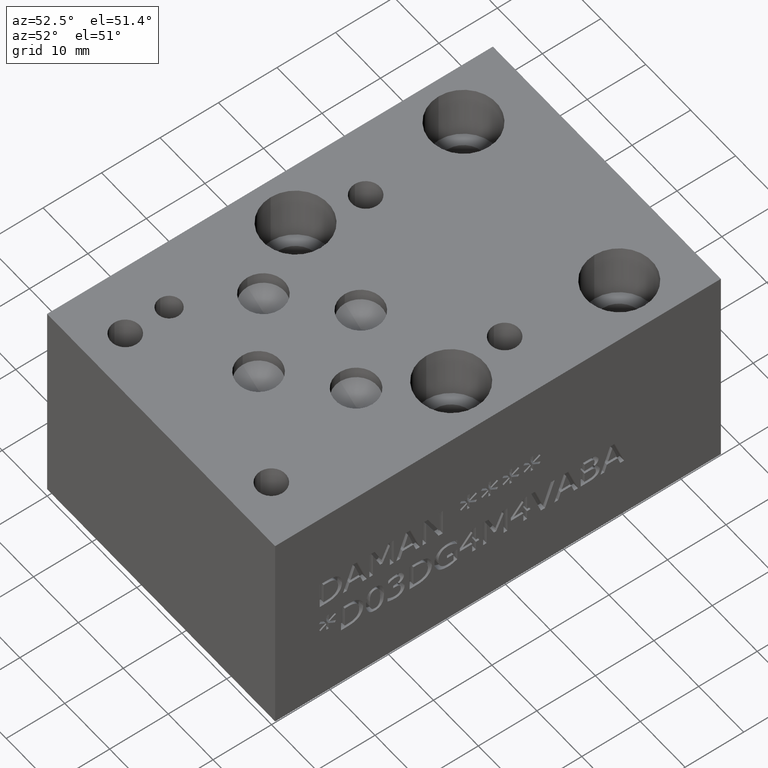
[diagram: clean part render]
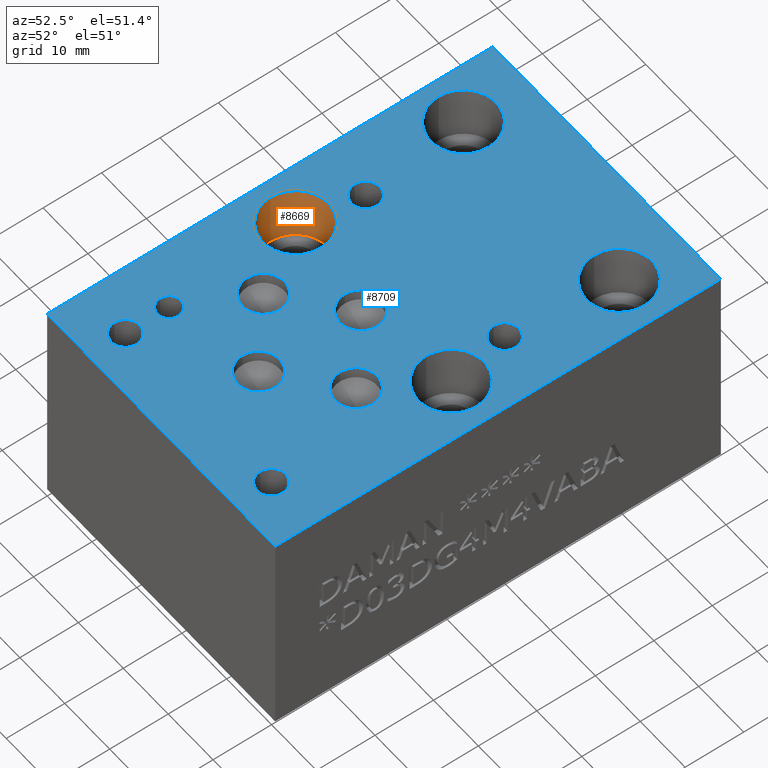
[diagram: same view with the hole feature highlighted: cylindrical wall and planar end face, labeled with their STEP entity ids]
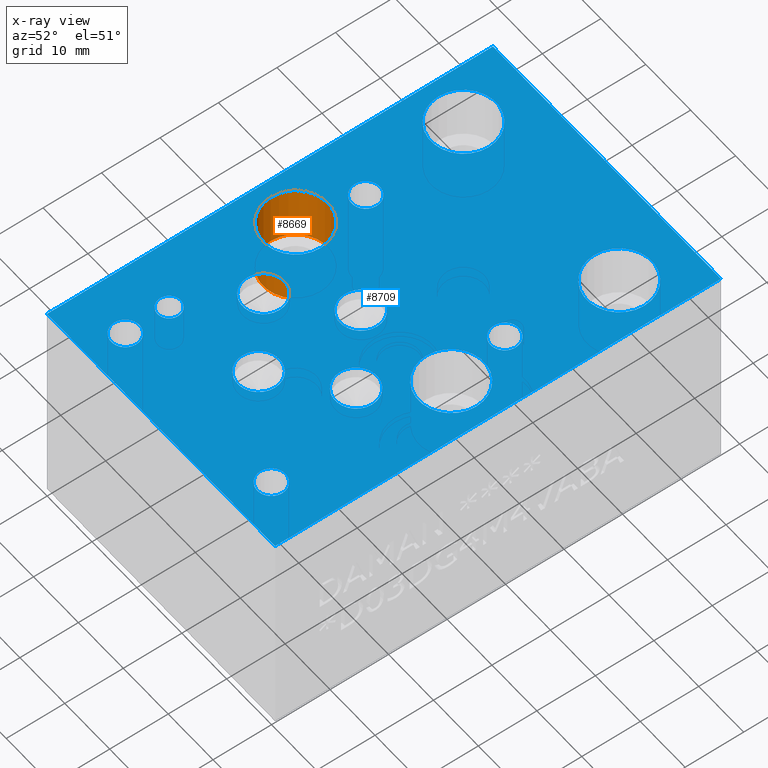
[diagram: x-ray of the same camera — body ghosted, the hole faces saturated]
A machine part, auxiliary view. The highlighted faces form one hole feature of diameter 11.1252 mm: the cylindrical wall (entity #8669, orange) and its adjacent planar end face (entity #8709, blue) — they share a circular edge in the B-rep.
The next image is the same camera in x-ray (body ghosted, the hole faces saturated) — the bore reads through the body.
Wall:
#93=CIRCLE('',#9096,5.5626);
#94=CIRCLE('',#9097,5.5626);
#96=CIRCLE('',#9100,5.5626);
#97=CIRCLE('',#9101,5.5626);
#175=CYLINDRICAL_SURFACE('',#9099,5.5626);
#908=FACE_OUTER_BOUND('',#1387,.T.);
#1387=EDGE_LOOP('',(#7382,#7383,#7384,#7385,#7386,#7387));
#2314=LINE('',#14364,#3209);
#3209=VECTOR('',#10818,5.5626);
#3981=VERTEX_POINT('',#14353);
#3982=VERTEX_POINT('',#14354);
#3984=VERTEX_POINT('',#14360);
#3985=VERTEX_POINT('',#14361);
#5143=EDGE_CURVE('',#3981,#3982,#93,.T.);
#5144=EDGE_CURVE('',#3982,#3981,#94,.T.);
#5146=EDGE_CURVE('',#3984,#3985,#96,.T.);
#5147=EDGE_CURVE('',#3985,#3984,#97,.T.);
#5148=EDGE_CURVE('',#3985,#3982,#2314,.T.);
#7382=ORIENTED_EDGE('',*,*,#5146,.F.);
#7383=ORIENTED_EDGE('',*,*,#5147,.F.);
#7384=ORIENTED_EDGE('',*,*,#5148,.T.);
#7385=ORIENTED_EDGE('',*,*,#5143,.F.);
#7386=ORIENTED_EDGE('',*,*,#5144,.F.);
#7387=ORIENTED_EDGE('',*,*,#5148,.F.);
#8669=ADVANCED_FACE('',(#908),#175,.F.);
#9096=AXIS2_PLACEMENT_3D('',#14355,#10806,#10807);
#9097=AXIS2_PLACEMENT_3D('',#14356,#10808,#10809);
#9099=AXIS2_PLACEMENT_3D('',#14359,#10812,#10813);
#9100=AXIS2_PLACEMENT_3D('',#14362,#10814,#10815);
#9101=AXIS2_PLACEMENT_3D('',#14363,#10816,#10817);
#10806=DIRECTION('center_axis',(0.,0.,1.));
#10807=DIRECTION('ref_axis',(1.,0.,0.));
#10808=DIRECTION('center_axis',(0.,0.,1.));
#10809=DIRECTION('ref_axis',(1.,0.,0.));
#10812=DIRECTION('center_axis',(0.,0.,1.));
#10813=DIRECTION('ref_axis',(1.,0.,0.));
#10814=DIRECTION('center_axis',(0.,0.,-1.));
#10815=DIRECTION('ref_axis',(1.,0.,0.));
#10816=DIRECTION('center_axis',(0.,0.,-1.));
#10817=DIRECTION('ref_axis',(1.,0.,0.));
#10818=DIRECTION('',(0.,0.,-1.));
#14353=CARTESIAN_POINT('',(13.5128,36.3728,28.575));
#14354=CARTESIAN_POINT('',(2.3876,36.3728,28.575));
#14355=CARTESIAN_POINT('Origin',(7.9502,36.3728,28.575));
#14356=CARTESIAN_POINT('Origin',(7.9502,36.3728,28.575));
#14359=CARTESIAN_POINT('Origin',(7.9502,36.3728,33.3375));
#14360=CARTESIAN_POINT('',(13.5128,36.3728,38.1));
#14361=CARTESIAN_POINT('',(2.3876,36.3728,38.1));
#14362=CARTESIAN_POINT('Origin',(7.9502,36.3728,38.1));
#14363=CARTESIAN_POINT('Origin',(7.9502,36.3728,38.1));
#14364=CARTESIAN_POINT('',(2.3876,36.3728,33.3375));
End face:
#89=CIRCLE('',#9089,5.5626);
#90=CIRCLE('',#9090,5.5626);
#96=CIRCLE('',#9100,5.5626);
#97=CIRCLE('',#9101,5.5626);
#103=CIRCLE('',#9111,5.5626);
#104=CIRCLE('',#9112,5.5626);
#110=CIRCLE('',#9122,5.5626);
#111=CIRCLE('',#9123,5.5626);
#114=CIRCLE('',#9129,3.5687);
#115=CIRCLE('',#9130,3.5687);
#118=CIRCLE('',#9135,3.5687);
#119=CIRCLE('',#9136,3.5687);
#122=CIRCLE('',#9141,3.5687);
#123=CIRCLE('',#9142,3.5687);
#126=CIRCLE('',#9147,3.5687);
#127=CIRCLE('',#9148,3.5687);
#130=CIRCLE('',#9153,1.9812);
#131=CIRCLE('',#9154,1.9812);
#137=CIRCLE('',#9163,2.413);
#138=CIRCLE('',#9164,2.413);
#144=CIRCLE('',#9174,2.413);
#145=CIRCLE('',#9175,2.413);
#151=CIRCLE('',#9185,2.413);
#152=CIRCLE('',#9186,2.413);
#158=CIRCLE('',#9196,2.413);
#159=CIRCLE('',#9197,2.413);
#489=FACE_BOUND('',#1434,.T.);
#490=FACE_BOUND('',#1435,.T.);
#491=FACE_BOUND('',#1436,.T.);
#492=FACE_BOUND('',#1437,.T.);
#493=FACE_BOUND('',#1438,.T.);
#494=FACE_BOUND('',#1439,.T.);
#495=FACE_BOUND('',#1440,.T.);
#496=FACE_BOUND('',#1441,.T.);
#497=FACE_BOUND('',#1442,.T.);
#498=FACE_BOUND('',#1443,.T.);
#499=FACE_BOUND('',#1444,.T.);
#500=FACE_BOUND('',#1445,.T.);
#501=FACE_BOUND('',#1446,.T.);
#948=FACE_OUTER_BOUND('',#1433,.T.);
#1433=EDGE_LOOP('',(#7566,#7567,#7568,#7569));
#1434=EDGE_LOOP('',(#7570,#7571));
#1435=EDGE_LOOP('',(#7572,#7573));
#1436=EDGE_LOOP('',(#7574,#7575));
#1437=EDGE_LOOP('',(#7576,#7577));
#1438=EDGE_LOOP('',(#7578,#7579));
#1439=EDGE_LOOP('',(#7580,#7581));
#1440=EDGE_LOOP('',(#7582,#7583));
#1441=EDGE_LOOP('',(#7584,#7585));
#1442=EDGE_LOOP('',(#7586,#7587));
#1443=EDGE_LOOP('',(#7588,#7589));
#1444=EDGE_LOOP('',(#7590,#7591));
#1445=EDGE_LOOP('',(#7592,#7593));
#1446=EDGE_LOOP('',(#7594,#7595));
#1909=LINE('',#13258,#2804);
#2346=LINE('',#14571,#3241);
#2349=LINE('',#14575,#3244);
#2351=LINE('',#14579,#3246);
#2804=VECTOR('',#9937,10.);
#3241=VECTOR('',#11046,10.);
#3244=VECTOR('',#11051,10.);
#3246=VECTOR('',#11057,10.);
#3649=VERTEX_POINT('',#13255);
#3650=VERTEX_POINT('',#13257);
#3976=VERTEX_POINT('',#14338);
#3977=VERTEX_POINT('',#14339);
#3984=VERTEX_POINT('',#14360);
#3985=VERTEX_POINT('',#14361);
#3992=VERTEX_POINT('',#14382);
#3993=VERTEX_POINT('',#14383);
#4000=VERTEX_POINT('',#14404);
#4001=VERTEX_POINT('',#14405);
#4005=VERTEX_POINT('',#14419);
#4006=VERTEX_POINT('',#14420);
#4010=VERTEX_POINT('',#14432);
#4011=VERTEX_POINT('',#14433);
#4015=VERTEX_POINT('',#14445);
#4016=VERTEX_POINT('',#14446);
#4020=VERTEX_POINT('',#14458);
#4021=VERTEX_POINT('',#14459);
#4025=VERTEX_POINT('',#14471);
#4026=VERTEX_POINT('',#14472);
#4033=VERTEX_POINT('',#14491);
#4034=VERTEX_POINT('',#14492);
#4041=VERTEX_POINT('',#14513);
#4042=VERTEX_POINT('',#14514);
#4049=VERTEX_POINT('',#14535);
#4050=VERTEX_POINT('',#14536);
#4057=VERTEX_POINT('',#14557);
#4058=VERTEX_POINT('',#14558);
#4061=VERTEX_POINT('',#14568);
#4062=VERTEX_POINT('',#14570);
#4665=EDGE_CURVE('',#3650,#3649,#1909,.T.);
#5136=EDGE_CURVE('',#3976,#3977,#89,.T.);
#5137=EDGE_CURVE('',#3977,#3976,#90,.T.);
#5146=EDGE_CURVE('',#3984,#3985,#96,.T.);
#5147=EDGE_CURVE('',#3985,#3984,#97,.T.);
#5156=EDGE_CURVE('',#3992,#3993,#103,.T.);
#5157=EDGE_CURVE('',#3993,#3992,#104,.T.);
#5166=EDGE_CURVE('',#4000,#4001,#110,.T.);
#5167=EDGE_CURVE('',#4001,#4000,#111,.T.);
#5173=EDGE_CURVE('',#4005,#4006,#114,.T.);
#5174=EDGE_CURVE('',#4006,#4005,#115,.T.);
#5179=EDGE_CURVE('',#4010,#4011,#118,.T.);
#5180=EDGE_CURVE('',#4011,#4010,#119,.T.);
#5185=EDGE_CURVE('',#4015,#4016,#122,.T.);
#5186=EDGE_CURVE('',#4016,#4015,#123,.T.);
#5191=EDGE_CURVE('',#4020,#4021,#126,.T.);
#5192=EDGE_CURVE('',#4021,#4020,#127,.T.);
#5197=EDGE_CURVE('',#4025,#4026,#130,.T.);
#5198=EDGE_CURVE('',#4026,#4025,#131,.T.);
#5206=EDGE_CURVE('',#4033,#4034,#137,.T.);
#5207=EDGE_CURVE('',#4034,#4033,#138,.T.);
#5216=EDGE_CURVE('',#4041,#4042,#144,.T.);
#5217=EDGE_CURVE('',#4042,#4041,#145,.T.);
#5226=EDGE_CURVE('',#4049,#4050,#151,.T.);
#5227=EDGE_CURVE('',#4050,#4049,#152,.T.);
#5236=EDGE_CURVE('',#4057,#4058,#158,.T.);
#5237=EDGE_CURVE('',#4058,#4057,#159,.T.);
#5242=EDGE_CURVE('',#4062,#4061,#2346,.T.);
#5245=EDGE_CURVE('',#3649,#4062,#2349,.T.);
#5247=EDGE_CURVE('',#4061,#3650,#2351,.T.);
#7566=ORIENTED_EDGE('',*,*,#5247,.T.);
#7567=ORIENTED_EDGE('',*,*,#4665,.T.);
#7568=ORIENTED_EDGE('',*,*,#5245,.T.);
#7569=ORIENTED_EDGE('',*,*,#5242,.T.);
#7570=ORIENTED_EDGE('',*,*,#5136,.T.);
#7571=ORIENTED_EDGE('',*,*,#5137,.T.);
#7572=ORIENTED_EDGE('',*,*,#5146,.T.);
#7573=ORIENTED_EDGE('',*,*,#5147,.T.);
#7574=ORIENTED_EDGE('',*,*,#5156,.T.);
#7575=ORIENTED_EDGE('',*,*,#5157,.T.);
#7576=ORIENTED_EDGE('',*,*,#5166,.T.);
#7577=ORIENTED_EDGE('',*,*,#5167,.T.);
#7578=ORIENTED_EDGE('',*,*,#5173,.T.);
#7579=ORIENTED_EDGE('',*,*,#5174,.T.);
#7580=ORIENTED_EDGE('',*,*,#5179,.T.);
#7581=ORIENTED_EDGE('',*,*,#5180,.T.);
#7582=ORIENTED_EDGE('',*,*,#5185,.T.);
#7583=ORIENTED_EDGE('',*,*,#5186,.T.);
#7584=ORIENTED_EDGE('',*,*,#5191,.T.);
#7585=ORIENTED_EDGE('',*,*,#5192,.T.);
#7586=ORIENTED_EDGE('',*,*,#5197,.T.);
#7587=ORIENTED_EDGE('',*,*,#5198,.T.);
#7588=ORIENTED_EDGE('',*,*,#5206,.T.);
#7589=ORIENTED_EDGE('',*,*,#5207,.T.);
#7590=ORIENTED_EDGE('',*,*,#5216,.T.);
#7591=ORIENTED_EDGE('',*,*,#5217,.T.);
#7592=ORIENTED_EDGE('',*,*,#5226,.T.);
#7593=ORIENTED_EDGE('',*,*,#5227,.T.);
#7594=ORIENTED_EDGE('',*,*,#5236,.T.);
#7595=ORIENTED_EDGE('',*,*,#5237,.T.);
#7916=PLANE('',#9203);
#8709=ADVANCED_FACE('',(#948,#489,#490,#491,#492,#493,#494,#495,#496,#497,
#498,#499,#500,#501),#7916,.T.);
#9089=AXIS2_PLACEMENT_3D('',#14340,#10789,#10790);
#9090=AXIS2_PLACEMENT_3D('',#14341,#10791,#10792);
#9100=AXIS2_PLACEMENT_3D('',#14362,#10814,#10815);
#9101=AXIS2_PLACEMENT_3D('',#14363,#10816,#10817);
#9111=AXIS2_PLACEMENT_3D('',#14384,#10839,#10840);
#9112=AXIS2_PLACEMENT_3D('',#14385,#10841,#10842);
#9122=AXIS2_PLACEMENT_3D('',#14406,#10864,#10865);
#9123=AXIS2_PLACEMENT_3D('',#14407,#10866,#10867);
#9129=AXIS2_PLACEMENT_3D('',#14421,#10881,#10882);
#9130=AXIS2_PLACEMENT_3D('',#14422,#10883,#10884);
#9135=AXIS2_PLACEMENT_3D('',#14434,#10895,#10896);
#9136=AXIS2_PLACEMENT_3D('',#14435,#10897,#10898);
#9141=AXIS2_PLACEMENT_3D('',#14447,#10909,#10910);
#9142=AXIS2_PLACEMENT_3D('',#14448,#10911,#10912);
#9147=AXIS2_PLACEMENT_3D('',#14460,#10923,#10924);
#9148=AXIS2_PLACEMENT_3D('',#14461,#10925,#10926);
#9153=AXIS2_PLACEMENT_3D('',#14473,#10937,#10938);
#9154=AXIS2_PLACEMENT_3D('',#14474,#10939,#10940);
#9163=AXIS2_PLACEMENT_3D('',#14493,#10959,#10960);
#9164=AXIS2_PLACEMENT_3D('',#14494,#10961,#10962);
#9174=AXIS2_PLACEMENT_3D('',#14515,#10984,#10985);
#9175=AXIS2_PLACEMENT_3D('',#14516,#10986,#10987);
#9185=AXIS2_PLACEMENT_3D('',#14537,#11009,#11010);
#9186=AXIS2_PLACEMENT_3D('',#14538,#11011,#11012);
#9196=AXIS2_PLACEMENT_3D('',#14559,#11034,#11035);
#9197=AXIS2_PLACEMENT_3D('',#14560,#11036,#11037);
#9203=AXIS2_PLACEMENT_3D('',#14580,#11058,#11059);
#9937=DIRECTION('',(0.,1.,0.));
#10789=DIRECTION('center_axis',(0.,0.,-1.));
#10790=DIRECTION('ref_axis',(1.,0.,0.));
#10791=DIRECTION('center_axis',(0.,0.,-1.));
#10792=DIRECTION('ref_axis',(1.,0.,0.));
#10814=DIRECTION('center_axis',(0.,0.,-1.));
#10815=DIRECTION('ref_axis',(1.,0.,0.));
#10816=DIRECTION('center_axis',(0.,0.,-1.));
#10817=DIRECTION('ref_axis',(1.,0.,0.));
#10839=DIRECTION('center_axis',(0.,0.,-1.));
#10840=DIRECTION('ref_axis',(1.,0.,0.));
#10841=DIRECTION('center_axis',(0.,0.,-1.));
#10842=DIRECTION('ref_axis',(1.,0.,0.));
#10864=DIRECTION('center_axis',(0.,0.,-1.));
#10865=DIRECTION('ref_axis',(1.,0.,0.));
#10866=DIRECTION('center_axis',(0.,0.,-1.));
#10867=DIRECTION('ref_axis',(1.,0.,0.));
#10881=DIRECTION('center_axis',(0.,0.,-1.));
#10882=DIRECTION('ref_axis',(1.,0.,0.));
#10883=DIRECTION('center_axis',(0.,0.,-1.));
#10884=DIRECTION('ref_axis',(1.,0.,0.));
#10895=DIRECTION('center_axis',(0.,0.,-1.));
#10896=DIRECTION('ref_axis',(1.,0.,0.));
#10897=DIRECTION('center_axis',(0.,0.,-1.));
#10898=DIRECTION('ref_axis',(1.,0.,0.));
#10909=DIRECTION('center_axis',(0.,0.,-1.));
#10910=DIRECTION('ref_axis',(1.,0.,0.));
#10911=DIRECTION('center_axis',(0.,0.,-1.));
#10912=DIRECTION('ref_axis',(1.,0.,0.));
#10923=DIRECTION('center_axis',(0.,0.,-1.));
#10924=DIRECTION('ref_axis',(1.,0.,0.));
#10925=DIRECTION('center_axis',(0.,0.,-1.));
#10926=DIRECTION('ref_axis',(1.,0.,0.));
#10937=DIRECTION('center_axis',(0.,0.,-1.));
#10938=DIRECTION('ref_axis',(1.,0.,0.));
#10939=DIRECTION('center_axis',(0.,0.,-1.));
#10940=DIRECTION('ref_axis',(1.,0.,0.));
#10959=DIRECTION('center_axis',(0.,0.,-1.));
#10960=DIRECTION('ref_axis',(1.,0.,0.));
#10961=DIRECTION('center_axis',(0.,0.,-1.));
#10962=DIRECTION('ref_axis',(1.,0.,0.));
#10984=DIRECTION('center_axis',(0.,0.,-1.));
#10985=DIRECTION('ref_axis',(1.,0.,0.));
#10986=DIRECTION('center_axis',(0.,0.,-1.));
#10987=DIRECTION('ref_axis',(1.,0.,0.));
#11009=DIRECTION('center_axis',(0.,0.,-1.));
#11010=DIRECTION('ref_axis',(1.,0.,0.));
#11011=DIRECTION('center_axis',(0.,0.,-1.));
#11012=DIRECTION('ref_axis',(1.,0.,0.));
#11034=DIRECTION('center_axis',(0.,0.,-1.));
#11035=DIRECTION('ref_axis',(1.,0.,0.));
#11036=DIRECTION('center_axis',(0.,0.,-1.));
#11037=DIRECTION('ref_axis',(1.,0.,0.));
#11046=DIRECTION('',(0.,-1.,0.));
#11051=DIRECTION('',(-1.,0.,0.));
#11057=DIRECTION('',(1.,0.,0.));
#11058=DIRECTION('center_axis',(0.,0.,1.));
#11059=DIRECTION('ref_axis',(1.,0.,0.));
#13255=CARTESIAN_POINT('',(50.8,76.2,38.1));
#13257=CARTESIAN_POINT('',(50.8,0.,38.1));
#13258=CARTESIAN_POINT('',(50.8,0.,38.1));
#14338=CARTESIAN_POINT('',(13.5001,65.0875,38.1));
#14339=CARTESIAN_POINT('',(2.3749,65.0875,38.1));
#14340=CARTESIAN_POINT('Origin',(7.9375,65.0875,38.1));
#14341=CARTESIAN_POINT('Origin',(7.9375,65.0875,38.1));
#14360=CARTESIAN_POINT('',(13.5128,36.3728,38.1));
#14361=CARTESIAN_POINT('',(2.3876,36.3728,38.1));
#14362=CARTESIAN_POINT('Origin',(7.9502,36.3728,38.1));
#14363=CARTESIAN_POINT('Origin',(7.9502,36.3728,38.1));
#14382=CARTESIAN_POINT('',(48.1838,36.3728,38.1));
#14383=CARTESIAN_POINT('',(37.0586,36.3728,38.1));
#14384=CARTESIAN_POINT('Origin',(42.6212,36.3728,38.1));
#14385=CARTESIAN_POINT('Origin',(42.6212,36.3728,38.1));
#14404=CARTESIAN_POINT('',(48.1838,65.1002,38.1));
#14405=CARTESIAN_POINT('',(37.0586,65.1002,38.1));
#14406=CARTESIAN_POINT('Origin',(42.6212,65.1002,38.1));
#14407=CARTESIAN_POINT('Origin',(42.6212,65.1002,38.1));
#14419=CARTESIAN_POINT('',(28.9687,34.1376,38.1));
#14420=CARTESIAN_POINT('',(21.8313,34.1376,38.1));
#14421=CARTESIAN_POINT('Origin',(25.4,34.1376,38.1));
#14422=CARTESIAN_POINT('Origin',(25.4,34.1376,38.1));
#14432=CARTESIAN_POINT('',(18.6563,25.4,38.1));
#14433=CARTESIAN_POINT('',(11.5189,25.4,38.1));
#14434=CARTESIAN_POINT('Origin',(15.0876,25.4,38.1));
#14435=CARTESIAN_POINT('Origin',(15.0876,25.4,38.1));
#14445=CARTESIAN_POINT('',(39.3065,25.4,38.1));
#14446=CARTESIAN_POINT('',(32.1691,25.4,38.1));
#14447=CARTESIAN_POINT('Origin',(35.7378,25.4,38.1));
#14448=CARTESIAN_POINT('Origin',(35.7378,25.4,38.1));
#14458=CARTESIAN_POINT('',(28.9687,16.6624,38.1));
#14459=CARTESIAN_POINT('',(21.8313,16.6624,38.1));
#14460=CARTESIAN_POINT('Origin',(25.4,16.6624,38.1));
#14461=CARTESIAN_POINT('Origin',(25.4,16.6624,38.1));
#14471=CARTESIAN_POINT('',(11.1252,13.843,38.1));
#14472=CARTESIAN_POINT('',(7.1628,13.843,38.1));
#14473=CARTESIAN_POINT('Origin',(9.144,13.843,38.1));
#14474=CARTESIAN_POINT('Origin',(9.144,13.843,38.1));
#14491=CARTESIAN_POINT('',(44.0944,6.35,38.1));
#14492=CARTESIAN_POINT('',(39.2684,6.35,38.1));
#14493=CARTESIAN_POINT('Origin',(41.6814,6.35,38.1));
#14494=CARTESIAN_POINT('Origin',(41.6814,6.35,38.1));
#14513=CARTESIAN_POINT('',(12.3444,46.8376,38.1));
#14514=CARTESIAN_POINT('',(7.5184,46.8376,38.1));
#14515=CARTESIAN_POINT('Origin',(9.9314,46.8376,38.1));
#14516=CARTESIAN_POINT('Origin',(9.9314,46.8376,38.1));
#14535=CARTESIAN_POINT('',(43.307,46.8376,38.1));
#14536=CARTESIAN_POINT('',(38.481,46.8376,38.1));
#14537=CARTESIAN_POINT('Origin',(40.894,46.8376,38.1));
#14538=CARTESIAN_POINT('Origin',(40.894,46.8376,38.1));
#14557=CARTESIAN_POINT('',(11.557,6.35,38.1));
#14558=CARTESIAN_POINT('',(6.731,6.35,38.1));
#14559=CARTESIAN_POINT('Origin',(9.144,6.35,38.1));
#14560=CARTESIAN_POINT('Origin',(9.144,6.35,38.1));
#14568=CARTESIAN_POINT('',(0.,0.,38.1));
#14570=CARTESIAN_POINT('',(0.,76.2,38.1));
#14571=CARTESIAN_POINT('',(0.,76.2,38.1));
#14575=CARTESIAN_POINT('',(50.8,76.2,38.1));
#14579=CARTESIAN_POINT('',(0.,0.,38.1));
#14580=CARTESIAN_POINT('Origin',(25.4,38.1,38.1));